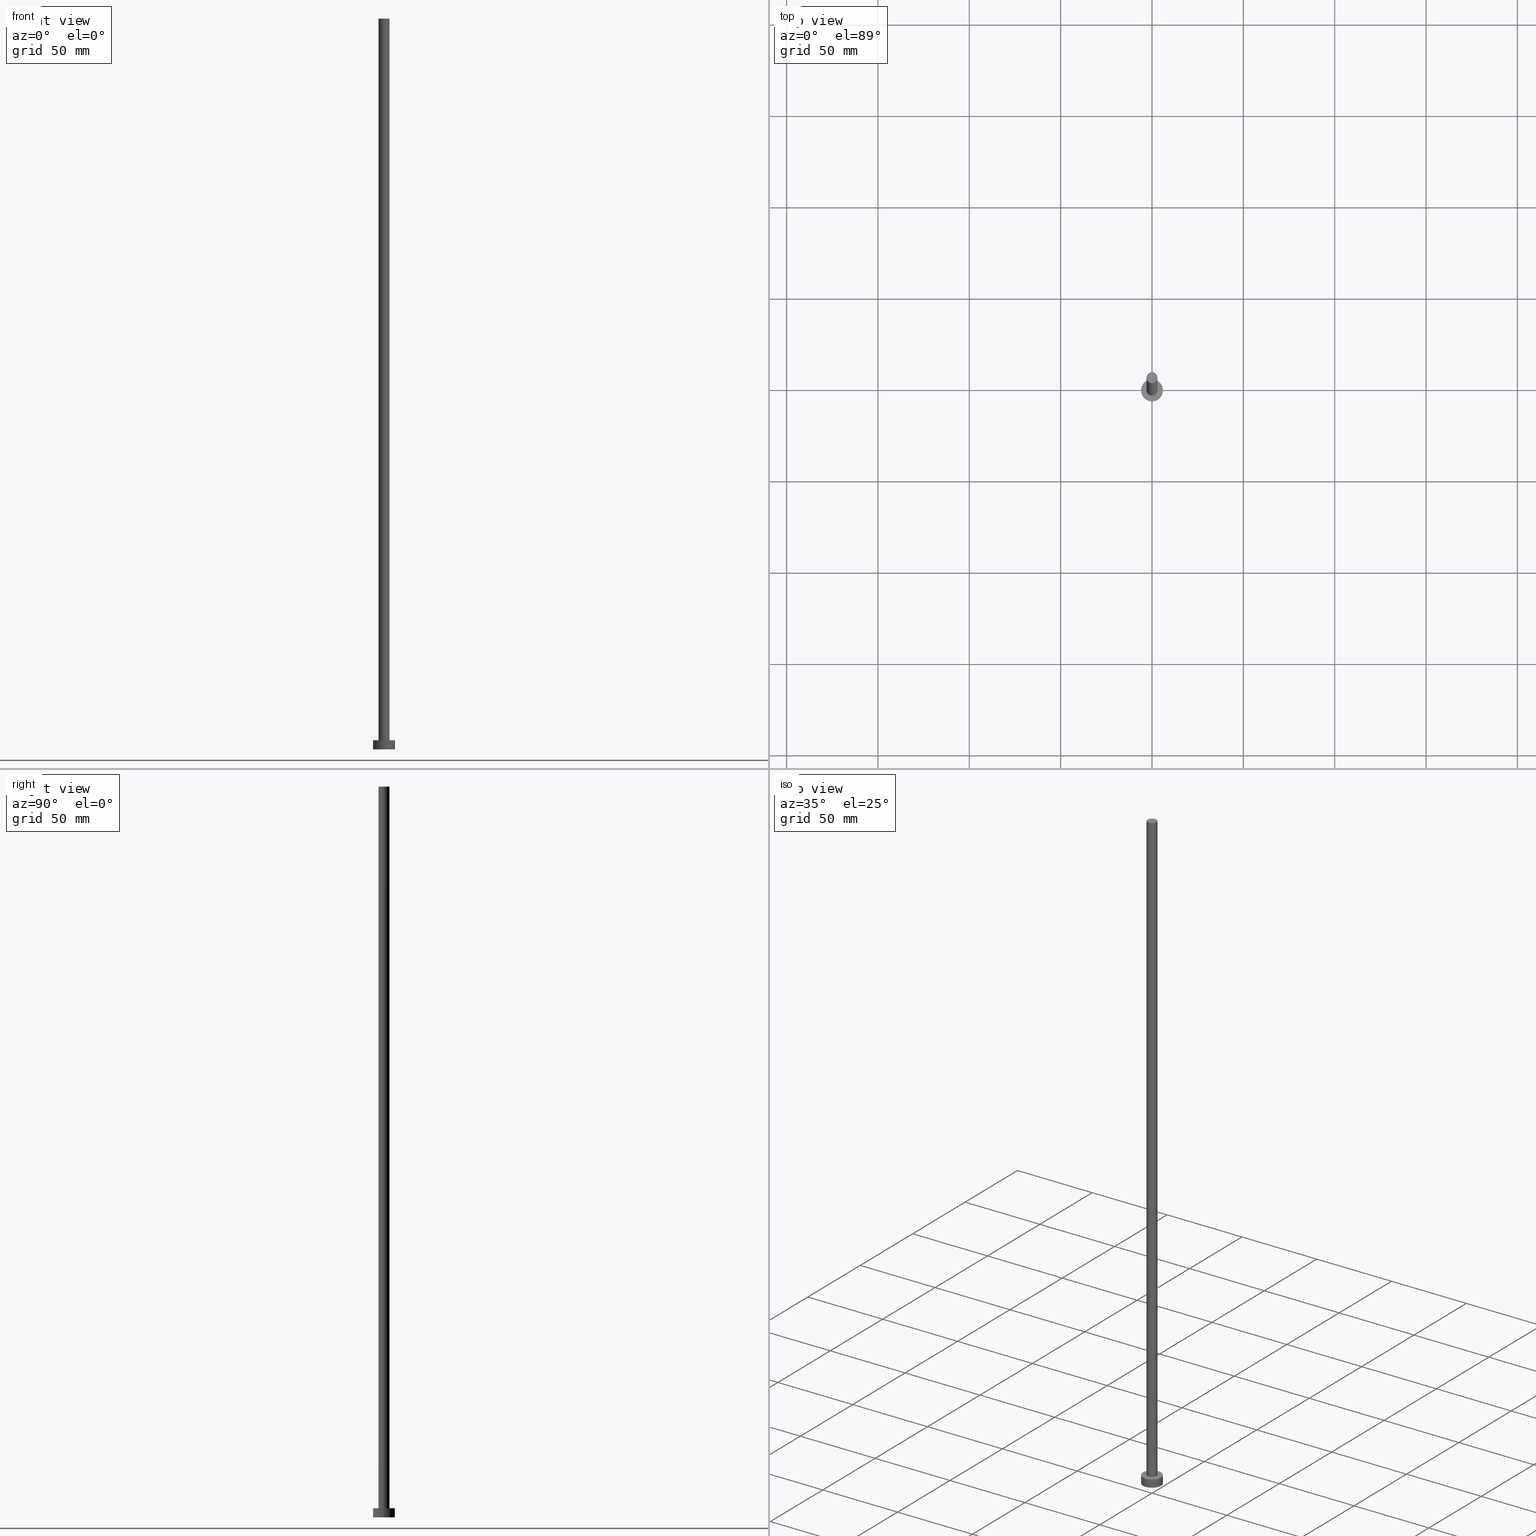
[diagram: canonical four-view strip — front | top / right | iso, engineering-drawing reading convention]
A machine part, canonical four-view strip (front | top / right | iso — engineering-drawing reading convention). The complete STEP part file that produces these views, byte-faithful:
ISO-10303-21;
HEADER;
FILE_DESCRIPTION (( 'STEP AP203' ),
    '1' );
FILE_NAME ('9954.STEP',
    '2023-02-12T12:18:35',
    ( '' ),
    ( '' ),
    'SwSTEP 2.0',
    'SolidWorks 2019',
    '' );
FILE_SCHEMA (( 'CONFIG_CONTROL_DESIGN' ));
ENDSEC;

DATA;
#1 = LINE ( 'NONE', #103, #228 ) ;
#2 = VERTEX_POINT ( 'NONE', #71 ) ;
#3 = CARTESIAN_POINT ( 'NONE',  ( 0.000000000000000000, 0.000000000000000000, 0.000000000000000000 ) ) ;
#4 = ADVANCED_FACE ( 'NONE', ( #107 ), #188, .T. ) ;
#5 = ORIENTED_EDGE ( 'NONE', *, *, #187, .T. ) ;
#6 = ORIENTED_EDGE ( 'NONE', *, *, #196, .T. ) ;
#7 = DIRECTION ( 'NONE',  ( -0.000000000000000000, -0.000000000000000000, -1.000000000000000000 ) ) ;
#8 = PRODUCT_RELATED_PRODUCT_CATEGORY ( 'detail', '', ( #212 ) ) ;
#9 = DIRECTION ( 'NONE',  ( 1.000000000000000000, 0.000000000000000000, 0.000000000000000000 ) ) ;
#10 = DIRECTION ( 'NONE',  ( 0.000000000000000000, 0.000000000000000000, 1.000000000000000000 ) ) ;
#11 = LOCAL_TIME ( 13, 18, 35.00000000000000000, #176 ) ;
#12 = ORIENTED_EDGE ( 'NONE', *, *, #129, .T. ) ;
#13 = AXIS2_PLACEMENT_3D ( 'NONE', #160, #218, #55 ) ;
#14 = CARTESIAN_POINT ( 'NONE',  ( 0.000000000000000000, 0.000000000000000000, 400.0000000000000000 ) ) ;
#15 = PERSON_AND_ORGANIZATION ( #25, #85 ) ;
#16 = DIRECTION ( 'NONE',  ( -0.000000000000000000, -0.000000000000000000, -1.000000000000000000 ) ) ;
#17 = PLANE ( 'NONE',  #13 ) ;
#18 = PLANE ( 'NONE',  #35 ) ;
#19 = APPROVAL_ROLE ( '' ) ;
#20 = CIRCLE ( 'NONE', #193, 6.000000000000000888 ) ;
#21 = DIRECTION ( 'NONE',  ( 1.000000000000000000, 0.000000000000000000, 0.000000000000000000 ) ) ;
#22 = EDGE_CURVE ( 'NONE', #47, #180, #245, .T. ) ;
#23 = DIRECTION ( 'NONE',  ( 1.000000000000000000, 0.000000000000000000, 0.000000000000000000 ) ) ;
#24 = AXIS2_PLACEMENT_3D ( 'NONE', #233, #80, #23 ) ;
#25 = PERSON ( 'NEUR�EN�', 'NEUR�EN�', 'NEUR�EN�', ('NEUR�EN�'), ('NEUR�EN�'), ('NEUR�EN�') ) ;
#26 = DIRECTION ( 'NONE',  ( 1.000000000000000000, 0.000000000000000000, 0.000000000000000000 ) ) ;
#27 = EDGE_LOOP ( 'NONE', ( #243, #232 ) ) ;
#28 = ORIENTED_EDGE ( 'NONE', *, *, #22, .T. ) ;
#29 = APPROVAL_DATE_TIME ( #225, #116 ) ;
#30 = EDGE_CURVE ( 'NONE', #229, #198, #131, .T. ) ;
#31 = DIRECTION ( 'NONE',  ( -1.000000000000000000, 0.000000000000000000, 0.000000000000000000 ) ) ;
#32 = APPROVAL_ROLE ( '' ) ;
#33 = CARTESIAN_POINT ( 'NONE',  ( 3.000000000000000444, 3.673940397442059868E-16, 5.000000000000000000 ) ) ;
#34 = COORDINATED_UNIVERSAL_TIME_OFFSET ( 1, 0, .AHEAD. ) ;
#35 = AXIS2_PLACEMENT_3D ( 'NONE', #99, #177, #59 ) ;
#36 = CALENDAR_DATE ( 2023, 12, 2 ) ;
#37 = ADVANCED_FACE ( 'NONE', ( #190 ), #17, .T. ) ;
#38 = DIRECTION ( 'NONE',  ( 0.000000000000000000, 0.000000000000000000, 1.000000000000000000 ) ) ;
#39 = SHAPE_DEFINITION_REPRESENTATION ( #151, #125 ) ;
#40 = APPROVAL_PERSON_ORGANIZATION ( #175, #162, #32 ) ;
#41 = FACE_BOUND ( 'NONE', #145, .T. ) ;
#42 = COORDINATED_UNIVERSAL_TIME_OFFSET ( 1, 0, .AHEAD. ) ;
#43 = ADVANCED_FACE ( 'NONE', ( #41, #130 ), #18, .T. ) ;
#44 = CARTESIAN_POINT ( 'NONE',  ( 0.000000000000000000, 0.000000000000000000, 5.000000000000000000 ) ) ;
#45 = CARTESIAN_POINT ( 'NONE',  ( 6.000000000000000888, 7.347880794884120722E-16, 5.000000000000000000 ) ) ;
#46 = DIRECTION ( 'NONE',  ( 1.000000000000000000, 0.000000000000000000, -0.000000000000000000 ) ) ;
#47 = VERTEX_POINT ( 'NONE', #197 ) ;
#48 = CYLINDRICAL_SURFACE ( 'NONE', #74, 6.000000000000000888 ) ;
#49 = EDGE_LOOP ( 'NONE', ( #186, #28, #6, #220 ) ) ;
#50 = CIRCLE ( 'NONE', #114, 6.000000000000000888 ) ;
#51 = ORIENTED_EDGE ( 'NONE', *, *, #106, .F. ) ;
#52 = VECTOR ( 'NONE', #126, 1000.000000000000000 ) ;
#53 = EDGE_CURVE ( 'NONE', #2, #81, #50, .T. ) ;
#54 = ORIENTED_EDGE ( 'NONE', *, *, #30, .F. ) ;
#55 = DIRECTION ( 'NONE',  ( 1.000000000000000000, 0.000000000000000000, -0.000000000000000000 ) ) ;
#56 = CC_DESIGN_DATE_AND_TIME_ASSIGNMENT ( #227, #250, ( #168 ) ) ;
#57 = COORDINATED_UNIVERSAL_TIME_OFFSET ( 1, 0, .AHEAD. ) ;
#58 = DIRECTION ( 'NONE',  ( 1.000000000000000000, 0.000000000000000000, 0.000000000000000000 ) ) ;
#59 = DIRECTION ( 'NONE',  ( 1.000000000000000000, 0.000000000000000000, -0.000000000000000000 ) ) ;
#60 = EDGE_LOOP ( 'NONE', ( #230, #51, #12, #143 ) ) ;
#61 = LINE ( 'NONE', #45, #91 ) ;
#62 = FACE_OUTER_BOUND ( 'NONE', #88, .T. ) ;
#63 = PRODUCT_DEFINITION ( 'NEZN�M�', '', #213, #178 ) ;
#64 = ORIENTED_EDGE ( 'NONE', *, *, #110, .T. ) ;
#65 = DIRECTION ( 'NONE',  ( -0.000000000000000000, -0.000000000000000000, -1.000000000000000000 ) ) ;
#66 = DIRECTION ( 'NONE',  ( 0.000000000000000000, 0.000000000000000000, 1.000000000000000000 ) ) ;
#67 = AXIS2_PLACEMENT_3D ( 'NONE', #14, #16, #31 ) ;
#68 = ADVANCED_FACE ( 'NONE', ( #62 ), #234, .T. ) ;
#69 = FACE_OUTER_BOUND ( 'NONE', #49, .T. ) ;
#70 =( GEOMETRIC_REPRESENTATION_CONTEXT ( 3 ) GLOBAL_UNCERTAINTY_ASSIGNED_CONTEXT ( ( #148 ) ) GLOBAL_UNIT_ASSIGNED_CONTEXT ( ( #221, #219, #244 ) ) REPRESENTATION_CONTEXT ( 'NONE', 'WORKASPACE' ) );
#71 = CARTESIAN_POINT ( 'NONE',  ( -6.000000000000000888, 0.000000000000000000, 0.000000000000000000 ) ) ;
#72 = MECHANICAL_CONTEXT ( 'NONE', #179, 'mechanical' ) ;
#73 = SECURITY_CLASSIFICATION_LEVEL ( 'unclassified' ) ;
#74 = AXIS2_PLACEMENT_3D ( 'NONE', #118, #7, #159 ) ;
#75 = CIRCLE ( 'NONE', #208, 3.000000000000000444 ) ;
#76 = CC_DESIGN_DATE_AND_TIME_ASSIGNMENT ( #93, #113, ( #63 ) ) ;
#77 = DATE_AND_TIME ( #211, #140 ) ;
#78 = ADVANCED_FACE ( 'NONE', ( #181 ), #136, .F. ) ;
#79 = PERSON_AND_ORGANIZATION_ROLE ( 'creator' ) ;
#80 = DIRECTION ( 'NONE',  ( 0.000000000000000000, 0.000000000000000000, 1.000000000000000000 ) ) ;
#81 = VERTEX_POINT ( 'NONE', #117 ) ;
#82 = CARTESIAN_POINT ( 'NONE',  ( 0.000000000000000000, 0.000000000000000000, 400.0000000000000000 ) ) ;
#83 = DIRECTION ( 'NONE',  ( 0.000000000000000000, 0.000000000000000000, 1.000000000000000000 ) ) ;
#84 = ADVANCED_FACE ( 'NONE', ( #215 ), #48, .T. ) ;
#85 = ORGANIZATION ( 'NEUR�EN�', 'NEUR�EN�', '' ) ;
#86 = CARTESIAN_POINT ( 'NONE',  ( 0.000000000000000000, 0.000000000000000000, 0.000000000000000000 ) ) ;
#87 = APPROVAL ( #189, 'NEUR�EN�' ) ;
#88 = EDGE_LOOP ( 'NONE', ( #167, #54, #195, #223 ) ) ;
#89 = CIRCLE ( 'NONE', #108, 3.000000000000000444 ) ;
#90 = PERSON_AND_ORGANIZATION_ROLE ( 'design_supplier' ) ;
#91 = VECTOR ( 'NONE', #138, 1000.000000000000000 ) ;
#92 = PERSON_AND_ORGANIZATION ( #25, #85 ) ;
#93 = DATE_AND_TIME ( #174, #11 ) ;
#94 = AXIS2_PLACEMENT_3D ( 'NONE', #242, #65, #104 ) ;
#95 = APPROVAL_STATUS ( 'not_yet_approved' ) ;
#96 = CARTESIAN_POINT ( 'NONE',  ( 0.000000000000000000, 0.000000000000000000, 400.0000000000000000 ) ) ;
#97 = CC_DESIGN_PERSON_AND_ORGANIZATION_ASSIGNMENT ( #238, #222, ( #168 ) ) ;
#98 = DIRECTION ( 'NONE',  ( 0.000000000000000000, 0.000000000000000000, 1.000000000000000000 ) ) ;
#99 = CARTESIAN_POINT ( 'NONE',  ( 0.000000000000000000, 0.000000000000000000, 5.000000000000000000 ) ) ;
#100 = AXIS2_PLACEMENT_3D ( 'NONE', #236, #141, #102 ) ;
#101 = EDGE_CURVE ( 'NONE', #229, #2, #217, .T. ) ;
#102 = DIRECTION ( 'NONE',  ( 1.000000000000000000, 0.000000000000000000, 0.000000000000000000 ) ) ;
#103 = CARTESIAN_POINT ( 'NONE',  ( -3.000000000000000444, 0.000000000000000000, 400.0000000000000000 ) ) ;
#104 = DIRECTION ( 'NONE',  ( -1.000000000000000000, 0.000000000000000000, 0.000000000000000000 ) ) ;
#105 = CC_DESIGN_APPROVAL ( #87, ( #168 ) ) ;
#106 = EDGE_CURVE ( 'NONE', #241, #47, #246, .T. ) ;
#107 = FACE_OUTER_BOUND ( 'NONE', #60, .T. ) ;
#108 = AXIS2_PLACEMENT_3D ( 'NONE', #185, #10, #58 ) ;
#109 = CARTESIAN_POINT ( 'NONE',  ( 0.000000000000000000, 0.000000000000000000, 0.000000000000000000 ) ) ;
#110 = EDGE_CURVE ( 'NONE', #198, #81, #61, .T. ) ;
#111 = CARTESIAN_POINT ( 'NONE',  ( -6.000000000000000888, 0.000000000000000000, 5.000000000000000000 ) ) ;
#112 = CARTESIAN_POINT ( 'NONE',  ( 0.000000000000000000, 0.000000000000000000, 5.000000000000000000 ) ) ;
#113 = DATE_TIME_ROLE ( 'creation_date' ) ;
#114 = AXIS2_PLACEMENT_3D ( 'NONE', #3, #98, #255 ) ;
#115 = DIRECTION ( 'NONE',  ( -0.000000000000000000, -0.000000000000000000, -1.000000000000000000 ) ) ;
#116 = APPROVAL ( #95, 'NEUR�EN�' ) ;
#117 = CARTESIAN_POINT ( 'NONE',  ( 6.000000000000000888, 7.347880794884120722E-16, 0.000000000000000000 ) ) ;
#118 = CARTESIAN_POINT ( 'NONE',  ( 0.000000000000000000, 0.000000000000000000, 5.000000000000000000 ) ) ;
#119 = CC_DESIGN_APPROVAL ( #116, ( #213 ) ) ;
#120 = EDGE_LOOP ( 'NONE', ( #164, #64, #5, #206 ) ) ;
#121 = DIRECTION ( 'NONE',  ( -0.000000000000000000, -0.000000000000000000, -1.000000000000000000 ) ) ;
#122 = ORIENTED_EDGE ( 'NONE', *, *, #154, .F. ) ;
#123 = APPLICATION_PROTOCOL_DEFINITION ( 'international standard', 'config_control_design', 1994, #179 ) ;
#124 = ORIENTED_EDGE ( 'NONE', *, *, #196, .F. ) ;
#125 = ADVANCED_BREP_SHAPE_REPRESENTATION ( '9954', ( #249, #100 ), #70 ) ;
#126 = DIRECTION ( 'NONE',  ( -0.000000000000000000, -0.000000000000000000, -1.000000000000000000 ) ) ;
#127 = CC_DESIGN_APPROVAL ( #162, ( #63 ) ) ;
#128 = CALENDAR_DATE ( 2023, 12, 2 ) ;
#129 = EDGE_CURVE ( 'NONE', #241, #182, #1, .T. ) ;
#130 = FACE_OUTER_BOUND ( 'NONE', #155, .T. ) ;
#131 = CIRCLE ( 'NONE', #194, 6.000000000000000888 ) ;
#132 = APPROVAL_DATE_TIME ( #214, #162 ) ;
#133 = AXIS2_PLACEMENT_3D ( 'NONE', #44, #115, #201 ) ;
#134 = EDGE_LOOP ( 'NONE', ( #235, #216 ) ) ;
#135 = APPROVAL_PERSON_ORGANIZATION ( #251, #116, #19 ) ;
#136 = PLANE ( 'NONE',  #144 ) ;
#137 = CARTESIAN_POINT ( 'NONE',  ( -6.000000000000000888, 0.000000000000000000, 5.000000000000000000 ) ) ;
#138 = DIRECTION ( 'NONE',  ( -0.000000000000000000, -0.000000000000000000, -1.000000000000000000 ) ) ;
#139 = DIRECTION ( 'NONE',  ( 0.000000000000000000, 0.000000000000000000, 1.000000000000000000 ) ) ;
#140 = LOCAL_TIME ( 13, 18, 35.00000000000000000, #57 ) ;
#141 = DIRECTION ( 'NONE',  ( 0.000000000000000000, 0.000000000000000000, 1.000000000000000000 ) ) ;
#142 = CC_DESIGN_PERSON_AND_ORGANIZATION_ASSIGNMENT ( #15, #90, ( #213 ) ) ;
#143 = ORIENTED_EDGE ( 'NONE', *, *, #154, .T. ) ;
#144 = AXIS2_PLACEMENT_3D ( 'NONE', #86, #139, #46 ) ;
#145 = EDGE_LOOP ( 'NONE', ( #122, #124 ) ) ;
#146 = CIRCLE ( 'NONE', #152, 3.000000000000000444 ) ;
#147 = APPROVAL_ROLE ( '' ) ;
#148 = UNCERTAINTY_MEASURE_WITH_UNIT (LENGTH_MEASURE( 1.000000000000000082E-05 ), #221, 'distance_accuracy_value', 'NONE');
#149 = PERSON_AND_ORGANIZATION_ROLE ( 'design_owner' ) ;
#150 = DIRECTION ( 'NONE',  ( 0.000000000000000000, 0.000000000000000000, 1.000000000000000000 ) ) ;
#151 = PRODUCT_DEFINITION_SHAPE ( 'NONE', 'NONE',  #63 ) ;
#152 = AXIS2_PLACEMENT_3D ( 'NONE', #112, #150, #21 ) ;
#153 = APPROVAL_DATE_TIME ( #77, #87 ) ;
#154 = EDGE_CURVE ( 'NONE', #182, #180, #89, .T. ) ;
#155 = EDGE_LOOP ( 'NONE', ( #156, #169 ) ) ;
#156 = ORIENTED_EDGE ( 'NONE', *, *, #30, .T. ) ;
#157 = CARTESIAN_POINT ( 'NONE',  ( 6.000000000000000888, 7.347880794884120722E-16, 5.000000000000000000 ) ) ;
#158 = CLOSED_SHELL ( 'NONE', ( #252, #84, #68, #43, #78, #4, #37 ) ) ;
#159 = DIRECTION ( 'NONE',  ( -1.000000000000000000, 0.000000000000000000, 0.000000000000000000 ) ) ;
#160 = CARTESIAN_POINT ( 'NONE',  ( 0.000000000000000000, 0.000000000000000000, 400.0000000000000000 ) ) ;
#161 = CARTESIAN_POINT ( 'NONE',  ( 3.000000000000000444, 3.673940397442059868E-16, 400.0000000000000000 ) ) ;
#162 = APPROVAL ( #253, 'NEUR�EN�' ) ;
#163 = PERSON_AND_ORGANIZATION_ROLE ( 'creator' ) ;
#164 = ORIENTED_EDGE ( 'NONE', *, *, #199, .F. ) ;
#165 = CYLINDRICAL_SURFACE ( 'NONE', #94, 3.000000000000000444 ) ;
#166 = PERSON_AND_ORGANIZATION ( #25, #85 ) ;
#167 = ORIENTED_EDGE ( 'NONE', *, *, #110, .F. ) ;
#168 = SECURITY_CLASSIFICATION ( '', '', #73 ) ;
#169 = ORIENTED_EDGE ( 'NONE', *, *, #199, .T. ) ;
#170 = APPLICATION_PROTOCOL_DEFINITION ( 'international standard', 'config_control_design', 1994, #191 ) ;
#171 = AXIS2_PLACEMENT_3D ( 'NONE', #96, #83, #9 ) ;
#172 = CC_DESIGN_PERSON_AND_ORGANIZATION_ASSIGNMENT ( #166, #163, ( #213 ) ) ;
#173 = DIRECTION ( 'NONE',  ( 1.000000000000000000, 0.000000000000000000, 0.000000000000000000 ) ) ;
#174 = CALENDAR_DATE ( 2023, 12, 2 ) ;
#175 = PERSON_AND_ORGANIZATION ( #25, #85 ) ;
#176 = COORDINATED_UNIVERSAL_TIME_OFFSET ( 1, 0, .AHEAD. ) ;
#177 = DIRECTION ( 'NONE',  ( 0.000000000000000000, 0.000000000000000000, 1.000000000000000000 ) ) ;
#178 = DESIGN_CONTEXT ( 'detailed design', #191, 'design' ) ;
#179 = APPLICATION_CONTEXT ( 'configuration controlled 3d designs of mechanical parts and assemblies' ) ;
#180 = VERTEX_POINT ( 'NONE', #33 ) ;
#181 = FACE_OUTER_BOUND ( 'NONE', #27, .T. ) ;
#182 = VERTEX_POINT ( 'NONE', #210 ) ;
#183 = CC_DESIGN_SECURITY_CLASSIFICATION ( #168, ( #213 ) ) ;
#184 = VECTOR ( 'NONE', #248, 1000.000000000000000 ) ;
#185 = CARTESIAN_POINT ( 'NONE',  ( 0.000000000000000000, 0.000000000000000000, 5.000000000000000000 ) ) ;
#186 = ORIENTED_EDGE ( 'NONE', *, *, #240, .F. ) ;
#187 = EDGE_CURVE ( 'NONE', #81, #2, #20, .T. ) ;
#188 = CYLINDRICAL_SURFACE ( 'NONE', #67, 3.000000000000000444 ) ;
#189 = APPROVAL_STATUS ( 'not_yet_approved' ) ;
#190 = FACE_OUTER_BOUND ( 'NONE', #134, .T. ) ;
#191 = APPLICATION_CONTEXT ( 'configuration controlled 3d designs of mechanical parts and assemblies' ) ;
#192 = PERSON_AND_ORGANIZATION ( #25, #85 ) ;
#193 = AXIS2_PLACEMENT_3D ( 'NONE', #109, #38, #173 ) ;
#194 = AXIS2_PLACEMENT_3D ( 'NONE', #207, #66, #202 ) ;
#195 = ORIENTED_EDGE ( 'NONE', *, *, #101, .T. ) ;
#196 = EDGE_CURVE ( 'NONE', #180, #182, #146, .T. ) ;
#197 = CARTESIAN_POINT ( 'NONE',  ( 3.000000000000000444, 3.673940397442059868E-16, 400.0000000000000000 ) ) ;
#198 = VERTEX_POINT ( 'NONE', #157 ) ;
#199 = EDGE_CURVE ( 'NONE', #198, #229, #237, .T. ) ;
#200 = DIRECTION ( 'NONE',  ( 0.000000000000000000, 0.000000000000000000, 1.000000000000000000 ) ) ;
#201 = DIRECTION ( 'NONE',  ( -1.000000000000000000, 0.000000000000000000, 0.000000000000000000 ) ) ;
#202 = DIRECTION ( 'NONE',  ( 1.000000000000000000, 0.000000000000000000, 0.000000000000000000 ) ) ;
#203 = LOCAL_TIME ( 13, 18, 35.00000000000000000, #34 ) ;
#204 = CARTESIAN_POINT ( 'NONE',  ( -3.000000000000000444, 0.000000000000000000, 400.0000000000000000 ) ) ;
#205 = CC_DESIGN_PERSON_AND_ORGANIZATION_ASSIGNMENT ( #92, #79, ( #63 ) ) ;
#206 = ORIENTED_EDGE ( 'NONE', *, *, #101, .F. ) ;
#207 = CARTESIAN_POINT ( 'NONE',  ( 0.000000000000000000, 0.000000000000000000, 5.000000000000000000 ) ) ;
#208 = AXIS2_PLACEMENT_3D ( 'NONE', #82, #200, #26 ) ;
#209 = CC_DESIGN_PERSON_AND_ORGANIZATION_ASSIGNMENT ( #239, #149, ( #212 ) ) ;
#210 = CARTESIAN_POINT ( 'NONE',  ( -3.000000000000000444, 0.000000000000000000, 5.000000000000000000 ) ) ;
#211 = CALENDAR_DATE ( 2023, 12, 2 ) ;
#212 = PRODUCT ( '9954', '9954', '', ( #72 ) ) ;
#213 = PRODUCT_DEFINITION_FORMATION_WITH_SPECIFIED_SOURCE ( 'LIBOVOLN�', '', #212, .NOT_KNOWN. ) ;
#214 = DATE_AND_TIME ( #247, #231 ) ;
#215 = FACE_OUTER_BOUND ( 'NONE', #120, .T. ) ;
#216 = ORIENTED_EDGE ( 'NONE', *, *, #240, .T. ) ;
#217 = LINE ( 'NONE', #111, #184 ) ;
#218 = DIRECTION ( 'NONE',  ( 0.000000000000000000, 0.000000000000000000, 1.000000000000000000 ) ) ;
#219 =( NAMED_UNIT ( * ) PLANE_ANGLE_UNIT ( ) SI_UNIT ( $, .RADIAN. ) );
#220 = ORIENTED_EDGE ( 'NONE', *, *, #129, .F. ) ;
#221 =( LENGTH_UNIT ( ) NAMED_UNIT ( * ) SI_UNIT ( .MILLI., .METRE. ) );
#222 = PERSON_AND_ORGANIZATION_ROLE ( 'classification_officer' ) ;
#223 = ORIENTED_EDGE ( 'NONE', *, *, #53, .T. ) ;
#224 = APPROVAL_PERSON_ORGANIZATION ( #192, #87, #147 ) ;
#225 = DATE_AND_TIME ( #128, #254 ) ;
#226 = COORDINATED_UNIVERSAL_TIME_OFFSET ( 1, 0, .AHEAD. ) ;
#227 = DATE_AND_TIME ( #36, #203 ) ;
#228 = VECTOR ( 'NONE', #121, 1000.000000000000000 ) ;
#229 = VERTEX_POINT ( 'NONE', #137 ) ;
#230 = ORIENTED_EDGE ( 'NONE', *, *, #22, .F. ) ;
#231 = LOCAL_TIME ( 13, 18, 35.00000000000000000, #226 ) ;
#232 = ORIENTED_EDGE ( 'NONE', *, *, #187, .F. ) ;
#233 = CARTESIAN_POINT ( 'NONE',  ( 0.000000000000000000, 0.000000000000000000, 5.000000000000000000 ) ) ;
#234 = CYLINDRICAL_SURFACE ( 'NONE', #133, 6.000000000000000888 ) ;
#235 = ORIENTED_EDGE ( 'NONE', *, *, #106, .T. ) ;
#236 = CARTESIAN_POINT ( 'NONE',  ( 0.000000000000000000, 0.000000000000000000, 0.000000000000000000 ) ) ;
#237 = CIRCLE ( 'NONE', #24, 6.000000000000000888 ) ;
#238 = PERSON_AND_ORGANIZATION ( #25, #85 ) ;
#239 = PERSON_AND_ORGANIZATION ( #25, #85 ) ;
#240 = EDGE_CURVE ( 'NONE', #47, #241, #75, .T. ) ;
#241 = VERTEX_POINT ( 'NONE', #204 ) ;
#242 = CARTESIAN_POINT ( 'NONE',  ( 0.000000000000000000, 0.000000000000000000, 400.0000000000000000 ) ) ;
#243 = ORIENTED_EDGE ( 'NONE', *, *, #53, .F. ) ;
#244 =( NAMED_UNIT ( * ) SI_UNIT ( $, .STERADIAN. ) SOLID_ANGLE_UNIT ( ) );
#245 = LINE ( 'NONE', #161, #52 ) ;
#246 = CIRCLE ( 'NONE', #171, 3.000000000000000444 ) ;
#247 = CALENDAR_DATE ( 2023, 12, 2 ) ;
#248 = DIRECTION ( 'NONE',  ( -0.000000000000000000, -0.000000000000000000, -1.000000000000000000 ) ) ;
#249 = MANIFOLD_SOLID_BREP ( 'P�idat vysunut�m3', #158 ) ;
#250 = DATE_TIME_ROLE ( 'classification_date' ) ;
#251 = PERSON_AND_ORGANIZATION ( #25, #85 ) ;
#252 = ADVANCED_FACE ( 'NONE', ( #69 ), #165, .T. ) ;
#253 = APPROVAL_STATUS ( 'not_yet_approved' ) ;
#254 = LOCAL_TIME ( 13, 18, 35.00000000000000000, #42 ) ;
#255 = DIRECTION ( 'NONE',  ( 1.000000000000000000, 0.000000000000000000, 0.000000000000000000 ) ) ;
ENDSEC;
END-ISO-10303-21;
